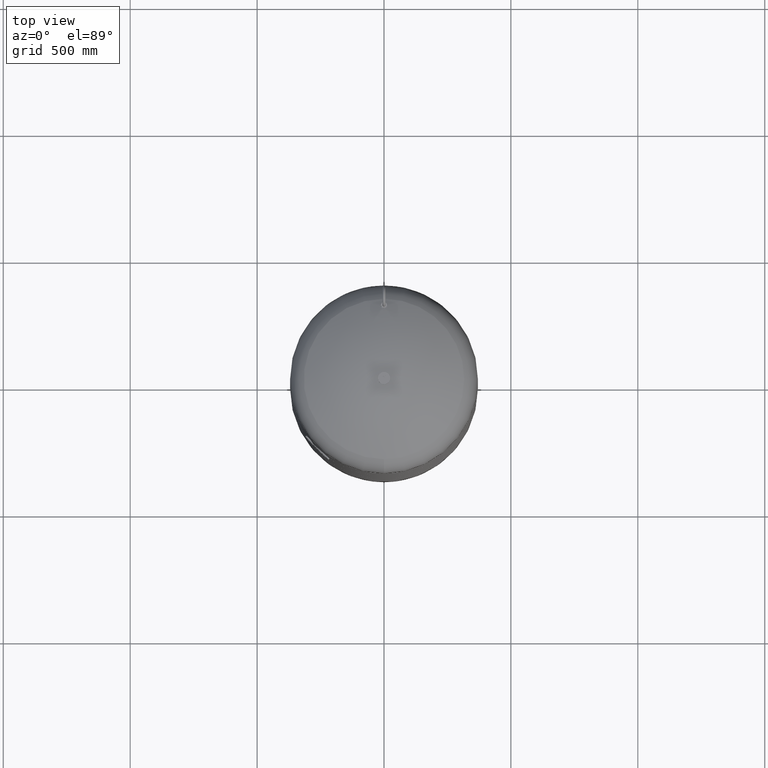
[diagram: clean part render]
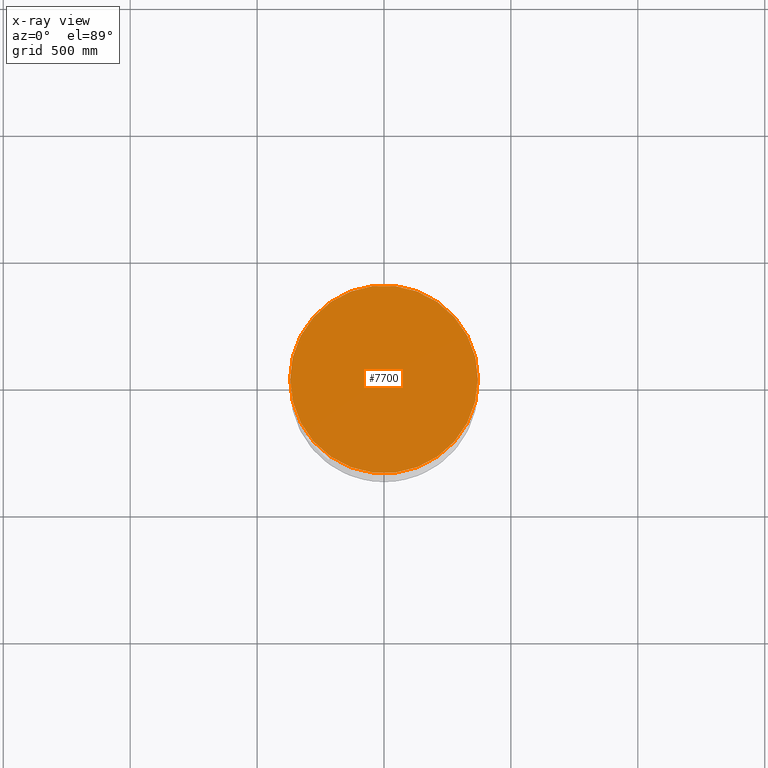
[diagram: x-ray — body ghosted, one internal face saturated and labeled with its STEP entity id]
A machine part, top view, then the same camera in x-ray: the body is ghosted and one INTERNAL B-rep face — a face not visible from any outside direction — is saturated and labeled: STEP entity #7700.
In plain terms, the highlighted planar face has unit normal (0, 0, 1).
Its self-contained STEP definition (entity closure, byte-faithful):
#7360=CARTESIAN_POINT('',(370.0,0.0,2371.0));
#7361=VERTEX_POINT('',#7360);
#7370=CARTESIAN_POINT('',(-369.999999999999720,-4.531044E-014,2371.0));
#7371=VERTEX_POINT('',#7370);
#7372=CARTESIAN_POINT('',(1.668796E-014,0.0,2371.0));
#7373=DIRECTION('',(0.0,0.0,1.0));
#7374=DIRECTION('',(1.0,0.0,0.0));
#7375=AXIS2_PLACEMENT_3D('',#7372,#7373,#7374);
#7376=CIRCLE('',#7375,370.0);
#7377=EDGE_CURVE('',#7371,#7361,#7376,.T.);
#7681=CARTESIAN_POINT('',(1.668796E-014,0.0,2371.0));
#7682=DIRECTION('',(0.0,0.0,1.0));
#7683=DIRECTION('',(1.0,0.0,0.0));
#7684=AXIS2_PLACEMENT_3D('',#7681,#7682,#7683);
#7685=CIRCLE('',#7684,370.0);
#7686=EDGE_CURVE('',#7361,#7371,#7685,.T.);
#7691=CARTESIAN_POINT('',(185.0,0.0,2371.0));
#7692=DIRECTION('',(0.0,0.0,1.0));
#7693=DIRECTION('',(1.0,0.0,0.0));
#7694=AXIS2_PLACEMENT_3D('',#7691,#7692,#7693);
#7695=PLANE('',#7694);
#7696=ORIENTED_EDGE('',*,*,#7686,.T.);
#7697=ORIENTED_EDGE('',*,*,#7377,.T.);
#7698=EDGE_LOOP('',(#7696,#7697));
#7699=FACE_OUTER_BOUND('',#7698,.T.);
#7700=ADVANCED_FACE('',(#7699),#7695,.T.);